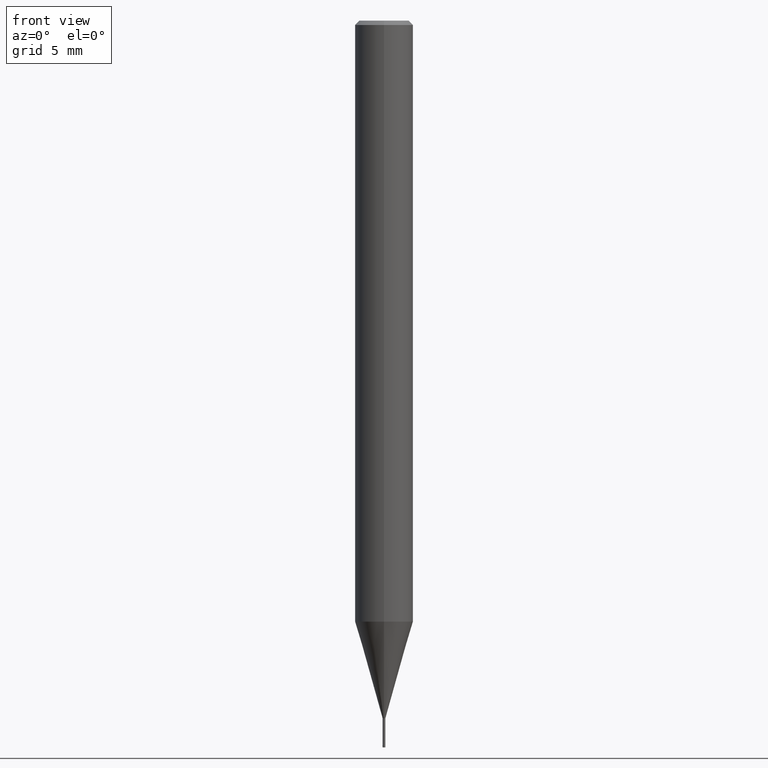
[diagram: clean part render]
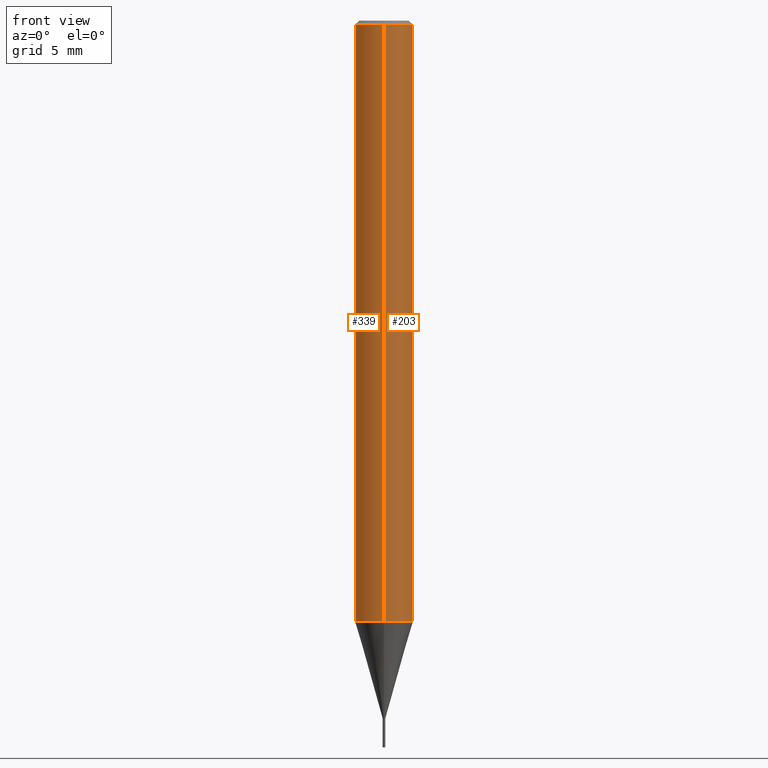
[diagram: same view with one multi-face feature highlighted, each face labeled with its STEP entity id]
A machine part, front view. The highlighted faces form ONE feature: a constant-radius fillet chain: 2 tangent blend faces with common blend radius 2 mm. The faces share edges in the B-rep.
Their STEP definitions:
[1] entity #203 (Cylinder):
#145=EDGE_CURVE('',#223,#227,#380,.T.);
#193=EDGE_CURVE('',#255,#223,#435,.T.);
#203=ADVANCED_FACE('',(#447),#448,.T.);
#223=VERTEX_POINT('',#469);
#227=VERTEX_POINT('',#473);
#235=EDGE_CURVE('',#227,#313,#481,.T.);
#255=VERTEX_POINT('',#503);
#313=VERTEX_POINT('',#574);
#319=EDGE_CURVE('',#255,#313,#580,.T.);
#380=CIRCLE('',#640,2.0);
#435=LINE('',#707,#708);
#447=FACE_OUTER_BOUND('',#722,.T.);
#448=CYLINDRICAL_SURFACE('',#723,2.0);
#469=CARTESIAN_POINT('',(0.0,2.0,-41.338));
#473=CARTESIAN_POINT('',(2.44921270764475E-016,-2.0,-41.338));
#481=LINE('',#763,#764);
#503=CARTESIAN_POINT('',(0.0,2.0,-0.289999999999999));
#574=CARTESIAN_POINT('',(2.44921270764475E-016,-2.0,-0.289999999999999));
#580=CIRCLE('',#888,2.0);
#640=AXIS2_PLACEMENT_3D('',#951,#952,#953);
#707=CARTESIAN_POINT('',(-2.44921270764475E-016,2.0,-20.814));
#708=VECTOR('',#1030,1.0);
#722=EDGE_LOOP('',(#1046,#1047,#1048,#1049));
#723=AXIS2_PLACEMENT_3D('',#1050,#1051,#1052);
#763=CARTESIAN_POINT('',(2.44921270764475E-016,-2.0,-20.814));
#764=VECTOR('',#1068,1.0);
#888=AXIS2_PLACEMENT_3D('',#1210,#1211,#1212);
#951=CARTESIAN_POINT('',(0.0,0.0,-41.338));
#952=DIRECTION('',(0.0,0.0,-1.0));
#953=DIRECTION('',(0.0,1.0,0.0));
#1030=DIRECTION('',(0.0,0.0,-1.0));
#1046=ORIENTED_EDGE('',*,*,#193,.F.);
#1047=ORIENTED_EDGE('',*,*,#319,.T.);
#1048=ORIENTED_EDGE('',*,*,#235,.F.);
#1049=ORIENTED_EDGE('',*,*,#145,.F.);
#1050=CARTESIAN_POINT('',(0.0,0.0,-20.814));
#1051=DIRECTION('',(-0.0,-0.0,1.0));
#1052=DIRECTION('',(0.0,1.0,0.0));
#1068=DIRECTION('',(-0.0,-0.0,1.0));
#1210=CARTESIAN_POINT('',(0.0,0.0,-0.289999999999999));
#1211=DIRECTION('',(0.0,0.0,-1.0));
#1212=DIRECTION('',(0.0,1.0,0.0));
[2] entity #339 (Cylinder):
#193=EDGE_CURVE('',#255,#223,#435,.T.);
#197=EDGE_CURVE('',#227,#223,#439,.T.);
#201=EDGE_CURVE('',#313,#255,#445,.T.);
#223=VERTEX_POINT('',#469);
#227=VERTEX_POINT('',#473);
#235=EDGE_CURVE('',#227,#313,#481,.T.);
#255=VERTEX_POINT('',#503);
#313=VERTEX_POINT('',#574);
#339=ADVANCED_FACE('',(#602),#603,.T.);
#435=LINE('',#707,#708);
#439=CIRCLE('',#713,2.0);
#445=CIRCLE('',#720,2.0);
#469=CARTESIAN_POINT('',(0.0,2.0,-41.338));
#473=CARTESIAN_POINT('',(2.44921270764475E-016,-2.0,-41.338));
#481=LINE('',#763,#764);
#503=CARTESIAN_POINT('',(0.0,2.0,-0.289999999999999));
#574=CARTESIAN_POINT('',(2.44921270764475E-016,-2.0,-0.289999999999999));
#602=FACE_OUTER_BOUND('',#917,.T.);
#603=CYLINDRICAL_SURFACE('',#918,2.0);
#707=CARTESIAN_POINT('',(-2.44921270764475E-016,2.0,-20.814));
#708=VECTOR('',#1030,1.0);
#713=AXIS2_PLACEMENT_3D('',#1031,#1032,#1033);
#720=AXIS2_PLACEMENT_3D('',#1042,#1043,#1044);
#763=CARTESIAN_POINT('',(2.44921270764475E-016,-2.0,-20.814));
#764=VECTOR('',#1068,1.0);
#917=EDGE_LOOP('',(#1241,#1242,#1243,#1244));
#918=AXIS2_PLACEMENT_3D('',#1245,#1246,#1247);
#1030=DIRECTION('',(0.0,0.0,-1.0));
#1031=CARTESIAN_POINT('',(0.0,0.0,-41.338));
#1032=DIRECTION('',(0.0,0.0,-1.0));
#1033=DIRECTION('',(0.0,1.0,0.0));
#1042=CARTESIAN_POINT('',(0.0,0.0,-0.289999999999999));
#1043=DIRECTION('',(0.0,0.0,-1.0));
#1044=DIRECTION('',(0.0,1.0,0.0));
#1068=DIRECTION('',(-0.0,-0.0,1.0));
#1241=ORIENTED_EDGE('',*,*,#193,.T.);
#1242=ORIENTED_EDGE('',*,*,#197,.F.);
#1243=ORIENTED_EDGE('',*,*,#235,.T.);
#1244=ORIENTED_EDGE('',*,*,#201,.T.);
#1245=CARTESIAN_POINT('',(0.0,0.0,-20.814));
#1246=DIRECTION('',(-0.0,-0.0,1.0));
#1247=DIRECTION('',(0.0,1.0,0.0));